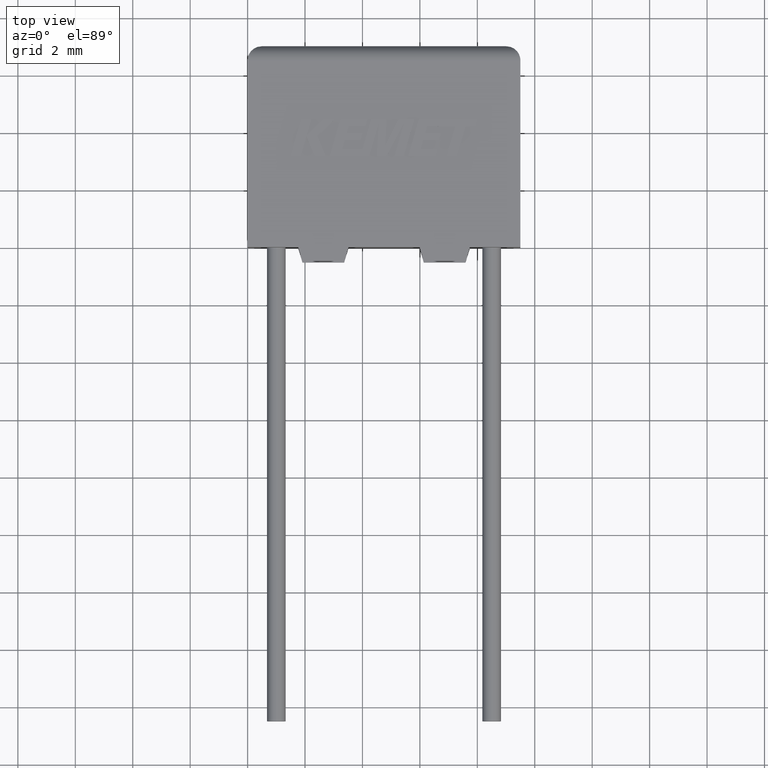
[diagram: clean part render]
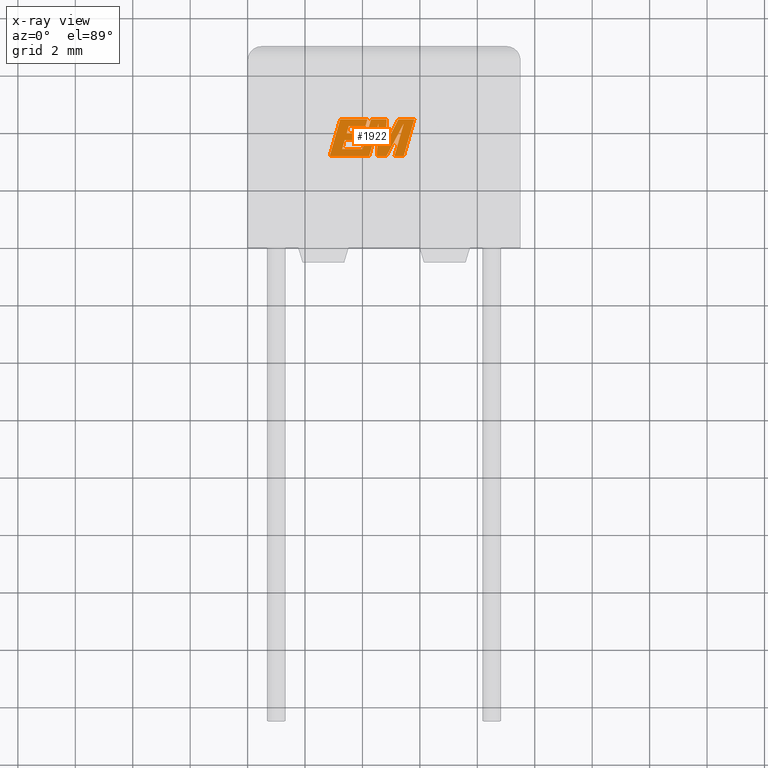
[diagram: x-ray — body ghosted, one internal face saturated and labeled with its STEP entity id]
A machine part, top view, then the same camera in x-ray: the body is ghosted and one INTERNAL B-rep face — a face not visible from any outside direction — is saturated and labeled: STEP entity #1922.
In plain terms, the highlighted planar face has unit normal (0, 0, -1).
Its self-contained STEP definition (entity closure, byte-faithful):
#2 = VERTEX_POINT ( 'NONE', #616 ) ;
#26 = LINE ( 'NONE', #2975, #1335 ) ;
#43 = LINE ( 'NONE', #515, #358 ) ;
#50 = EDGE_CURVE ( 'NONE', #2658, #738, #100, .T. ) ;
#80 = ORIENTED_EDGE ( 'NONE', *, *, #2188, .F. ) ;
#100 = LINE ( 'NONE', #360, #1328 ) ;
#111 = CARTESIAN_POINT ( 'NONE',  ( 4.101154048671347100, 4.199945489563877000, 2.500000000000000000 ) ) ;
#196 = EDGE_CURVE ( 'NONE', #2852, #2489, #783, .T. ) ;
#211 = ORIENTED_EDGE ( 'NONE', *, *, #2333, .F. ) ;
#220 = CARTESIAN_POINT ( 'NONE',  ( 4.561432537789317000, 4.302887041198026500, 2.500000000000000000 ) ) ;
#255 = DIRECTION ( 'NONE',  ( -0.2760118818968562100, -0.9611542233438689100, 0.0000000000000000000 ) ) ;
#280 = EDGE_CURVE ( 'NONE', #1217, #2852, #2205, .T. ) ;
#302 = EDGE_CURVE ( 'NONE', #2637, #2288, #445, .T. ) ;
#358 = VECTOR ( 'NONE', #2749, 1000.000000000000000 ) ;
#360 = CARTESIAN_POINT ( 'NONE',  ( 4.235027761227294200, 3.166099999999960200, 2.500000000000000000 ) ) ;
#365 = DIRECTION ( 'NONE',  ( 0.2732148821745924400, 0.9619530280415585800, 0.0000000000000000000 ) ) ;
#366 = EDGE_CURVE ( 'NONE', #1324, #1276, #854, .T. ) ;
#369 = VERTEX_POINT ( 'NONE', #2065 ) ;
#388 = EDGE_CURVE ( 'NONE', #2491, #1104, #1279, .T. ) ;
#435 = VERTEX_POINT ( 'NONE', #2579 ) ;
#444 = ORIENTED_EDGE ( 'NONE', *, *, #1022, .F. ) ;
#445 = LINE ( 'NONE', #3006, #3118 ) ;
#478 = VERTEX_POINT ( 'NONE', #2146 ) ;
#481 = LINE ( 'NONE', #1416, #2402 ) ;
#489 = EDGE_CURVE ( 'NONE', #478, #3237, #1528, .T. ) ;
#515 = CARTESIAN_POINT ( 'NONE',  ( 3.450277998326626500, 3.962443015533084500, 2.500000000000000000 ) ) ;
#521 = CARTESIAN_POINT ( 'NONE',  ( 4.297548234679902100, 4.442996107114992400, 2.500000000000000000 ) ) ;
#582 = EDGE_CURVE ( 'NONE', #2489, #2637, #2921, .T. ) ;
#590 = VERTEX_POINT ( 'NONE', #1134 ) ;
#594 = ORIENTED_EDGE ( 'NONE', *, *, #2931, .F. ) ;
#616 = CARTESIAN_POINT ( 'NONE',  ( 5.244664055122066200, 4.442996107114992400, 2.500000000000000000 ) ) ;
#628 = VECTOR ( 'NONE', #2832, 1000.000000000000000 ) ;
#633 = CARTESIAN_POINT ( 'NONE',  ( 3.382931534018605900, 3.726388727319302600, 2.500000000000000000 ) ) ;
#642 = EDGE_CURVE ( 'NONE', #1276, #2962, #481, .T. ) ;
#645 = VECTOR ( 'NONE', #1411, 1000.000000000000000 ) ;
#659 = ORIENTED_EDGE ( 'NONE', *, *, #1857, .F. ) ;
#683 = ORIENTED_EDGE ( 'NONE', *, *, #388, .F. ) ;
#736 = CARTESIAN_POINT ( 'NONE',  ( 4.000347891670146300, 3.409030258946482500, 2.500000000000000000 ) ) ;
#738 = VERTEX_POINT ( 'NONE', #220 ) ;
#747 = DIRECTION ( 'NONE',  ( 0.2746459304916903900, 0.9615454294334477800, 0.0000000000000000000 ) ) ;
#783 = LINE ( 'NONE', #3223, #1773 ) ;
#803 = CARTESIAN_POINT ( 'NONE',  ( 5.804702003179045300, 4.442996107114992400, 2.500000000000000000 ) ) ;
#832 = CARTESIAN_POINT ( 'NONE',  ( 4.792227338743759700, 3.530765122089830400, 2.500000000000000000 ) ) ;
#854 = LINE ( 'NONE', #832, #1879 ) ;
#861 = VERTEX_POINT ( 'NONE', #1265 ) ;
#893 = VECTOR ( 'NONE', #1597, 1000.000000000000000 ) ;
#909 = CARTESIAN_POINT ( 'NONE',  ( 3.998336738179655300, 3.962443015533084500, 2.500000000000000000 ) ) ;
#926 = VERTEX_POINT ( 'NONE', #2850 ) ;
#932 = PLANE ( 'NONE',  #1082 ) ;
#944 = EDGE_CURVE ( 'NONE', #369, #2606, #2196, .T. ) ;
#980 = ORIENTED_EDGE ( 'NONE', *, *, #1431, .F. ) ;
#993 = DIRECTION ( 'NONE',  ( -1.000000000000000000, 0.0000000000000000000, 0.0000000000000000000 ) ) ;
#1022 = EDGE_CURVE ( 'NONE', #3237, #2491, #1721, .T. ) ;
#1044 = DIRECTION ( 'NONE',  ( -0.05596501978068205800, -0.9984327301130245800, 0.0000000000000000000 ) ) ;
#1073 = LINE ( 'NONE', #521, #3214 ) ;
#1082 = AXIS2_PLACEMENT_3D ( 'NONE', #1946, #1712, #1967 ) ;
#1087 = CARTESIAN_POINT ( 'NONE',  ( 4.235027761227294200, 3.166099999999960200, 2.500000000000000000 ) ) ;
#1104 = VERTEX_POINT ( 'NONE', #2630 ) ;
#1134 = CARTESIAN_POINT ( 'NONE',  ( 5.437584957234608200, 3.166099999999960200, 2.500000000000000000 ) ) ;
#1179 = DIRECTION ( 'NONE',  ( 1.000000000000000000, 0.0000000000000000000, 0.0000000000000000000 ) ) ;
#1217 = VERTEX_POINT ( 'NONE', #3226 ) ;
#1256 = CARTESIAN_POINT ( 'NONE',  ( 3.450277998326626500, 3.962443015533084500, 2.500000000000000000 ) ) ;
#1265 = CARTESIAN_POINT ( 'NONE',  ( 4.497712361829270500, 3.166099999999960200, 2.500000000000000000 ) ) ;
#1273 = LINE ( 'NONE', #1499, #2553 ) ;
#1276 = VERTEX_POINT ( 'NONE', #2177 ) ;
#1279 = LINE ( 'NONE', #2330, #628 ) ;
#1284 = DIRECTION ( 'NONE',  ( 0.2763139702539115800, 0.9610674221107072800, 0.0000000000000000000 ) ) ;
#1294 = CARTESIAN_POINT ( 'NONE',  ( 4.838121444672152500, 3.166099999999960200, 2.500000000000000000 ) ) ;
#1302 = LINE ( 'NONE', #3086, #2746 ) ;
#1324 = VERTEX_POINT ( 'NONE', #2946 ) ;
#1328 = VECTOR ( 'NONE', #2358, 1000.000000000000200 ) ;
#1335 = VECTOR ( 'NONE', #1044, 1000.000000000000100 ) ;
#1381 = CARTESIAN_POINT ( 'NONE',  ( 3.930912623157625200, 3.726388727319302600, 2.500000000000000000 ) ) ;
#1386 = EDGE_CURVE ( 'NONE', #2311, #435, #43, .T. ) ;
#1411 = DIRECTION ( 'NONE',  ( -1.000000000000000000, 0.0000000000000000000, 0.0000000000000000000 ) ) ;
#1416 = CARTESIAN_POINT ( 'NONE',  ( 4.841333111737835500, 4.442996107114992400, 2.500000000000000000 ) ) ;
#1421 = CARTESIAN_POINT ( 'NONE',  ( 5.113105918381671200, 3.166099999999960200, 2.500000000000000000 ) ) ;
#1431 = EDGE_CURVE ( 'NONE', #1104, #2658, #1273, .T. ) ;
#1449 = DIRECTION ( 'NONE',  ( 1.000000000000000000, 0.0000000000000000000, 0.0000000000000000000 ) ) ;
#1497 = CARTESIAN_POINT ( 'NONE',  ( 3.382931534018605900, 3.726388727319302600, 2.500000000000000000 ) ) ;
#1499 = CARTESIAN_POINT ( 'NONE',  ( 4.007744121166371800, 3.166099999999958800, 2.500000000000000000 ) ) ;
#1506 = CARTESIAN_POINT ( 'NONE',  ( 5.441125829795740100, 4.308361416536843800, 2.500000000000000000 ) ) ;
#1522 = VECTOR ( 'NONE', #1814, 1000.000000000000000 ) ;
#1528 = LINE ( 'NONE', #111, #1686 ) ;
#1549 = VECTOR ( 'NONE', #2082, 1000.000000000000000 ) ;
#1557 = VERTEX_POINT ( 'NONE', #803 ) ;
#1597 = DIRECTION ( 'NONE',  ( 1.000000000000000000, 0.0000000000000000000, 0.0000000000000000000 ) ) ;
#1672 = LINE ( 'NONE', #1702, #2944 ) ;
#1682 = ORIENTED_EDGE ( 'NONE', *, *, #50, .F. ) ;
#1686 = VECTOR ( 'NONE', #365, 1000.000000000000000 ) ;
#1702 = CARTESIAN_POINT ( 'NONE',  ( 5.244664055122066200, 4.442996107114992400, 2.500000000000000000 ) ) ;
#1712 = DIRECTION ( 'NONE',  ( 0.0000000000000000000, 0.0000000000000000000, -1.000000000000000000 ) ) ;
#1720 = CARTESIAN_POINT ( 'NONE',  ( 3.292507277490678500, 3.409030258946482500, 2.500000000000000000 ) ) ;
#1721 = LINE ( 'NONE', #3123, #1522 ) ;
#1724 = CARTESIAN_POINT ( 'NONE',  ( 4.497712361829270500, 3.166099999999960200, 2.500000000000000000 ) ) ;
#1727 = ORIENTED_EDGE ( 'NONE', *, *, #489, .F. ) ;
#1761 = CARTESIAN_POINT ( 'NONE',  ( 3.519387133843796500, 4.199945489563877000, 2.500000000000000000 ) ) ;
#1773 = VECTOR ( 'NONE', #2278, 1000.000000000000200 ) ;
#1814 = DIRECTION ( 'NONE',  ( -1.000000000000000000, 0.0000000000000000000, 0.0000000000000000000 ) ) ;
#1854 = LINE ( 'NONE', #3001, #3094 ) ;
#1857 = EDGE_CURVE ( 'NONE', #861, #369, #1909, .T. ) ;
#1861 = EDGE_CURVE ( 'NONE', #926, #590, #3175, .T. ) ;
#1879 = VECTOR ( 'NONE', #2320, 1000.000000000000200 ) ;
#1902 = DIRECTION ( 'NONE',  ( -1.000000000000000000, 0.0000000000000000000, 0.0000000000000000000 ) ) ;
#1903 = EDGE_CURVE ( 'NONE', #2, #1324, #1672, .T. ) ;
#1909 = LINE ( 'NONE', #1724, #2345 ) ;
#1919 = ORIENTED_EDGE ( 'NONE', *, *, #366, .F. ) ;
#1922 = ADVANCED_FACE ( 'NONE', ( #3251 ), #932, .T. ) ;
#1946 = CARTESIAN_POINT ( 'NONE',  ( 0.04312138960717629800, -3.919304190165553400, 2.499999999999999100 ) ) ;
#1967 = DIRECTION ( 'NONE',  ( -1.000000000000000000, 0.0000000000000000000, 0.0000000000000000000 ) ) ;
#1968 = EDGE_CURVE ( 'NONE', #2606, #926, #2790, .T. ) ;
#1991 = ORIENTED_EDGE ( 'NONE', *, *, #1968, .F. ) ;
#2065 = CARTESIAN_POINT ( 'NONE',  ( 4.838121444672152500, 3.166099999999960200, 2.500000000000000000 ) ) ;
#2078 = ORIENTED_EDGE ( 'NONE', *, *, #2788, .F. ) ;
#2082 = DIRECTION ( 'NONE',  ( 1.000000000000000000, 0.0000000000000000000, 0.0000000000000000000 ) ) ;
#2100 = VECTOR ( 'NONE', #255, 1000.000000000000100 ) ;
#2109 = VECTOR ( 'NONE', #2357, 1000.000000000000000 ) ;
#2139 = CARTESIAN_POINT ( 'NONE',  ( 4.170185533474596100, 4.442996107114992400, 2.500000000000000000 ) ) ;
#2146 = CARTESIAN_POINT ( 'NONE',  ( 4.101154048671347100, 4.199945489563877000, 2.500000000000000000 ) ) ;
#2177 = CARTESIAN_POINT ( 'NONE',  ( 4.841333111737835500, 4.442996107114992400, 2.500000000000000000 ) ) ;
#2188 = EDGE_CURVE ( 'NONE', #435, #478, #2586, .T. ) ;
#2196 = LINE ( 'NONE', #1294, #2109 ) ;
#2205 = LINE ( 'NONE', #736, #2450 ) ;
#2210 = EDGE_CURVE ( 'NONE', #590, #1557, #1302, .T. ) ;
#2234 = DIRECTION ( 'NONE',  ( -0.4443210308329058100, -0.8958676361827030400, 0.0000000000000000000 ) ) ;
#2278 = DIRECTION ( 'NONE',  ( 0.2740217765954066100, 0.9617234872620595800, 0.0000000000000000000 ) ) ;
#2288 = VERTEX_POINT ( 'NONE', #2851 ) ;
#2302 = DIRECTION ( 'NONE',  ( -1.000000000000000000, 0.0000000000000000000, 0.0000000000000000000 ) ) ;
#2311 = VERTEX_POINT ( 'NONE', #1256 ) ;
#2320 = DIRECTION ( 'NONE',  ( 0.05375259206908267900, 0.9985542843760947300, 0.0000000000000000000 ) ) ;
#2330 = CARTESIAN_POINT ( 'NONE',  ( 3.226857481293508000, 4.442996107114992400, 2.500000000000000000 ) ) ;
#2333 = EDGE_CURVE ( 'NONE', #2288, #2311, #3135, .T. ) ;
#2345 = VECTOR ( 'NONE', #1179, 1000.000000000000000 ) ;
#2357 = DIRECTION ( 'NONE',  ( 0.4668459304955212000, 0.8843386665637610300, 0.0000000000000000000 ) ) ;
#2358 = DIRECTION ( 'NONE',  ( 0.2759782365590801000, 0.9611638845408936300, 0.0000000000000000000 ) ) ;
#2402 = VECTOR ( 'NONE', #1902, 1000.000000000000000 ) ;
#2417 = ORIENTED_EDGE ( 'NONE', *, *, #196, .F. ) ;
#2422 = EDGE_CURVE ( 'NONE', #2962, #1217, #1073, .T. ) ;
#2435 = ORIENTED_EDGE ( 'NONE', *, *, #1903, .F. ) ;
#2450 = VECTOR ( 'NONE', #2302, 1000.000000000000000 ) ;
#2489 = VERTEX_POINT ( 'NONE', #1497 ) ;
#2491 = VERTEX_POINT ( 'NONE', #3037 ) ;
#2501 = DIRECTION ( 'NONE',  ( 1.000000000000000000, 4.833865254349439700E-015, 0.0000000000000000000 ) ) ;
#2503 = CARTESIAN_POINT ( 'NONE',  ( 4.297548234679902100, 4.442996107114992400, 2.500000000000000000 ) ) ;
#2512 = ORIENTED_EDGE ( 'NONE', *, *, #302, .F. ) ;
#2542 = ORIENTED_EDGE ( 'NONE', *, *, #642, .F. ) ;
#2553 = VECTOR ( 'NONE', #2501, 1000.000000000000000 ) ;
#2579 = CARTESIAN_POINT ( 'NONE',  ( 3.519387133843796500, 4.199945489563877000, 2.500000000000000000 ) ) ;
#2586 = LINE ( 'NONE', #1761, #1549 ) ;
#2601 = ORIENTED_EDGE ( 'NONE', *, *, #2210, .F. ) ;
#2606 = VERTEX_POINT ( 'NONE', #2624 ) ;
#2624 = CARTESIAN_POINT ( 'NONE',  ( 5.441125829795740100, 4.308361416536843800, 2.500000000000000000 ) ) ;
#2630 = CARTESIAN_POINT ( 'NONE',  ( 2.859418183860302800, 3.166099999999958800, 2.500000000000000000 ) ) ;
#2637 = VERTEX_POINT ( 'NONE', #1381 ) ;
#2658 = VERTEX_POINT ( 'NONE', #1087 ) ;
#2746 = VECTOR ( 'NONE', #1284, 1000.000000000000200 ) ;
#2749 = DIRECTION ( 'NONE',  ( 0.2793947940878287500, 0.9601763114327596100, 0.0000000000000000000 ) ) ;
#2755 = DIRECTION ( 'NONE',  ( -0.2762517575166160700, -0.9610853065513907900, 0.0000000000000000000 ) ) ;
#2788 = EDGE_CURVE ( 'NONE', #738, #861, #26, .T. ) ;
#2790 = LINE ( 'NONE', #1506, #2100 ) ;
#2828 = ORIENTED_EDGE ( 'NONE', *, *, #1386, .F. ) ;
#2832 = DIRECTION ( 'NONE',  ( -0.2765379750249960000, -0.9610029908221278100, 0.0000000000000000000 ) ) ;
#2842 = ORIENTED_EDGE ( 'NONE', *, *, #1861, .F. ) ;
#2850 = CARTESIAN_POINT ( 'NONE',  ( 5.113105918381671200, 3.166099999999960200, 2.500000000000000000 ) ) ;
#2851 = CARTESIAN_POINT ( 'NONE',  ( 3.998336738179655300, 3.962443015533084500, 2.500000000000000000 ) ) ;
#2852 = VERTEX_POINT ( 'NONE', #1720 ) ;
#2858 = VECTOR ( 'NONE', #1449, 1000.000000000000000 ) ;
#2888 = ORIENTED_EDGE ( 'NONE', *, *, #280, .F. ) ;
#2921 = LINE ( 'NONE', #633, #893 ) ;
#2922 = ORIENTED_EDGE ( 'NONE', *, *, #2422, .F. ) ;
#2931 = EDGE_CURVE ( 'NONE', #1557, #2, #1854, .T. ) ;
#2944 = VECTOR ( 'NONE', #2234, 1000.000000000000000 ) ;
#2946 = CARTESIAN_POINT ( 'NONE',  ( 4.792227338743759700, 3.530765122089830400, 2.500000000000000000 ) ) ;
#2962 = VERTEX_POINT ( 'NONE', #2503 ) ;
#2975 = CARTESIAN_POINT ( 'NONE',  ( 4.561432537789317000, 4.302887041198026500, 2.500000000000000000 ) ) ;
#3001 = CARTESIAN_POINT ( 'NONE',  ( 5.804702003179045300, 4.442996107114992400, 2.500000000000000000 ) ) ;
#3006 = CARTESIAN_POINT ( 'NONE',  ( 3.930912623157625200, 3.726388727319302600, 2.500000000000000000 ) ) ;
#3036 = ORIENTED_EDGE ( 'NONE', *, *, #944, .F. ) ;
#3037 = CARTESIAN_POINT ( 'NONE',  ( 3.226857481293508000, 4.442996107114992400, 2.500000000000000000 ) ) ;
#3041 = EDGE_LOOP ( 'NONE', ( #594, #2601, #2842, #1991, #3036, #659, #2078, #1682, #980, #683, #444, #1727, #80, #2828, #211, #2512, #3161, #2417, #2888, #2922, #2542, #1919, #2435 ) ) ;
#3086 = CARTESIAN_POINT ( 'NONE',  ( 5.437584957234608200, 3.166099999999960200, 2.500000000000000000 ) ) ;
#3094 = VECTOR ( 'NONE', #993, 1000.000000000000000 ) ;
#3118 = VECTOR ( 'NONE', #747, 1000.000000000000200 ) ;
#3123 = CARTESIAN_POINT ( 'NONE',  ( 4.170185533474596100, 4.442996107114992400, 2.500000000000000000 ) ) ;
#3135 = LINE ( 'NONE', #909, #645 ) ;
#3161 = ORIENTED_EDGE ( 'NONE', *, *, #582, .F. ) ;
#3175 = LINE ( 'NONE', #1421, #2858 ) ;
#3214 = VECTOR ( 'NONE', #2755, 1000.000000000000000 ) ;
#3223 = CARTESIAN_POINT ( 'NONE',  ( 3.292507277490678500, 3.409030258946482500, 2.500000000000000000 ) ) ;
#3226 = CARTESIAN_POINT ( 'NONE',  ( 4.000347891670146300, 3.409030258946482500, 2.500000000000000000 ) ) ;
#3237 = VERTEX_POINT ( 'NONE', #2139 ) ;
#3251 = FACE_OUTER_BOUND ( 'NONE', #3041, .T. ) ;